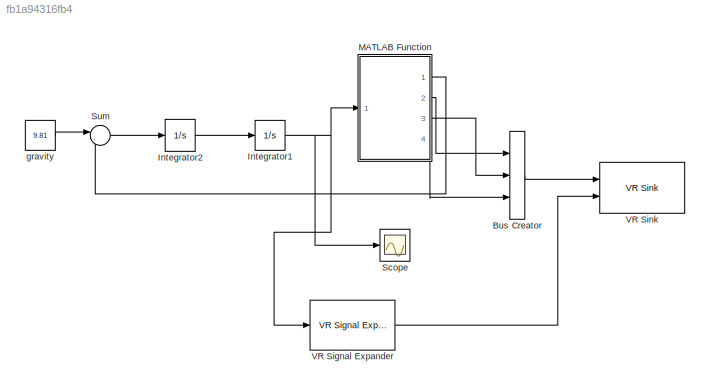
MODEL slx_fb1a94316fb4
KIND model
CONFIG AbsTol = auto
CONFIG EnableMultiTasking = off
CONFIG FixedStep = auto
CONFIG MaxStep = auto
CONFIG MinStep = auto
CONFIG RelTol = 1e-3
CONFIG SampleTimeConstraint = Unconstrained
CONFIG Solver = VariableStepAuto
CONFIG SolverName = VariableStepAuto
CONFIG StartTime = 0.0
CONFIG StopTime = 1000000000
BLOCK [BusCreator] Bus Creator
  DisplayOption = bar
  InheritFromInputs = on
  Inputs = 3
  Ports = [3, 1]
BLOCK [Integrator] Integrator1
  InitialCondition = 20
  Ports = [1, 1]
BLOCK [Integrator] Integrator2
  Ports = [1, 1]
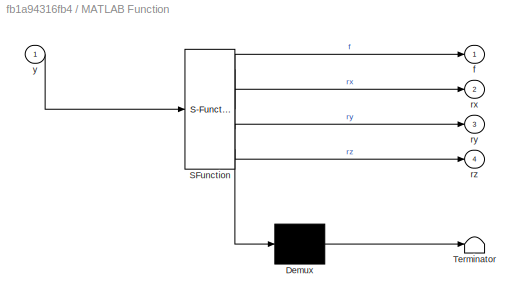
BLOCK [SubSystem] MATLAB Function
  ErrorFcn = Stateflow.Translate.translate
  PermitHierarchicalResolution = ExplicitOnly
  Ports = [1, 4]
  RequestExecContextInheritance = off
  SFBlockType = MATLAB Function
  TreatAsAtomicUnit = on
BLOCK [Demux] MATLAB Function/ Demux 
  Outputs = 1
  Ports = [1, 1]
BLOCK [S-Function] MATLAB Function/ SFunction 
  EnableBusSupport = on
  FunctionName = sf_sfun
  PortCounts = [1 5]
  Ports = [1, 5]
  SFcnIsStateOwnerBlock = off
  SFunctionDeploymentMode = off
  Tag = Stateflow S-Function Bouncingcode 2
BLOCK [Terminator] MATLAB Function/ Terminator 
BLOCK [Outport] MATLAB Function/f
  IconDisplay = Port number
BLOCK [Outport] MATLAB Function/rx
  IconDisplay = Port number
  Port = 2
BLOCK [Outport] MATLAB Function/ry
  IconDisplay = Port number
  Port = 3
BLOCK [Outport] MATLAB Function/rz
  IconDisplay = Port number
  Port = 4
BLOCK [Inport] MATLAB Function/y
  IconDisplay = Port number
BLOCK [Scope] Scope
  Floating = off
  NumInputPorts = 1
  Ports = [1]
  ScopeSpecificationString = Simulink.scopes.TimeScopeBlockCfg('CurrentConfiguration', extmgr.ConfigurationSet(extmgr.Configuration('Core','General UI',true),extmgr.Configuration('Core','Source UI',true),extmgr.Configuration('Sources','WiredSimulink',true),extmgr.Configuration('Visuals','Time Domain',true,'SerializedDisplays',{struct('MinYLimReal','-1.79562','MaxYLimReal','22.4439','YLabelReal','','MinYLimMag','0.00000','MaxY...<+1331ch>
BLOCK [Sum] Sum
  IconShape = round
  InputSameDT = off
  Inputs = |-+
  OutDataTypeStr = Inherit: Inherit via internal rule
  Ports = [2, 1]
  SaturateOnIntegerOverflow = off
BLOCK [Reference] VR Signal Expander  REF=vrlib/VR Signal Expander
  Ports = [1, 1]
  SourceBlock = vrlib/VR Signal Expander
  SourceProductBaseCode = VR
  SourceProductName = Simulink 3D Animation
  SourceType = VR Signal Expander
BLOCK [Reference] VR Sink  REF=vrlib/VR Sink
  InstantiateOnLoad = on
  Ports = [2]
  SourceBlock = vrlib/VR Sink
  SourceProductBaseCode = VR
  SourceProductName = Simulink 3D Animation
  SourceType = Virtual Reality Sink
BLOCK [Constant] gravity
  Value = 9.81
LINE Bus Creator:1 -> VR Sink:1
NET Integrator1:1 -> MATLAB Function:1, Scope:1, VR Signal Expander:1
LINE Integrator2:1 -> Integrator1:1
LINE MATLAB Function:1 -> Sum:2
LINE MATLAB Function:2 -> Bus Creator:1
LINE MATLAB Function:3 -> Bus Creator:2
LINE MATLAB Function:4 -> Bus Creator:3
LINE Sum:1 -> Integrator2:1
LINE VR Signal Expander:1 -> VR Sink:2
LINE gravity:1 -> Sum:1
note: NET lines group one-source signal fan-out (src -> all destinations, sorted); 1:1 wires keep LINE
CHART MATLAB Function states=1 transitions=1
  STATE_LABEL 'eML_blk_kernel()'
  STATE_LABEL 'SCRIPT:\nfunction [f,rx,ry,rz] = fcn(y)\nif y<1e-4\n    y=1e-4;\nend\nif y>=1.5\n    f=0;\n    rx=1.5;\n    ry=1.5;\n    rz=1.5;\nelse\n    f=500*(1.5-y);\n    rx=sqrt(1.5^3/y);\n    ry=y;\n    rz=rx;\nend\n\n'
